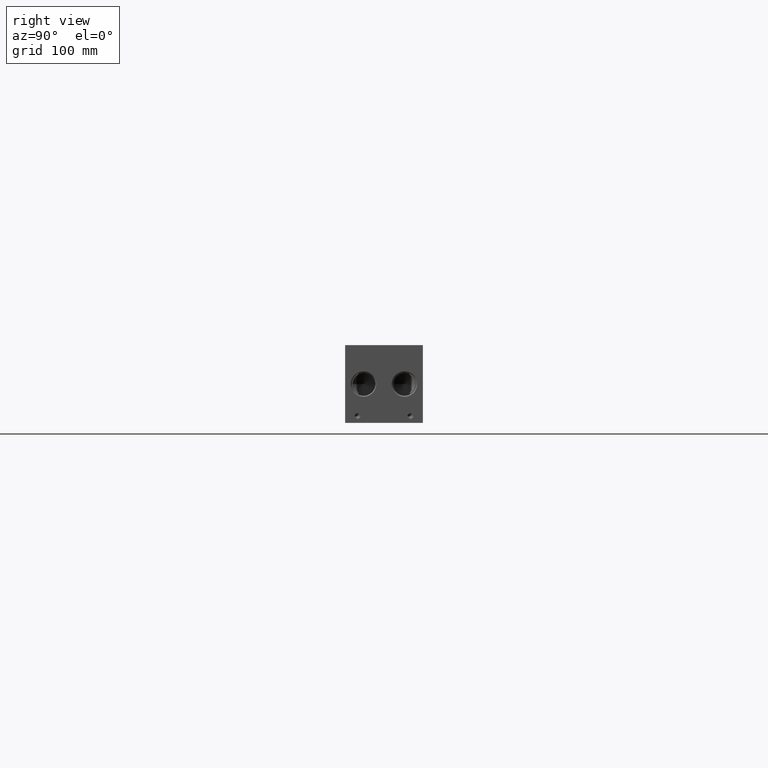
[diagram: clean part render]
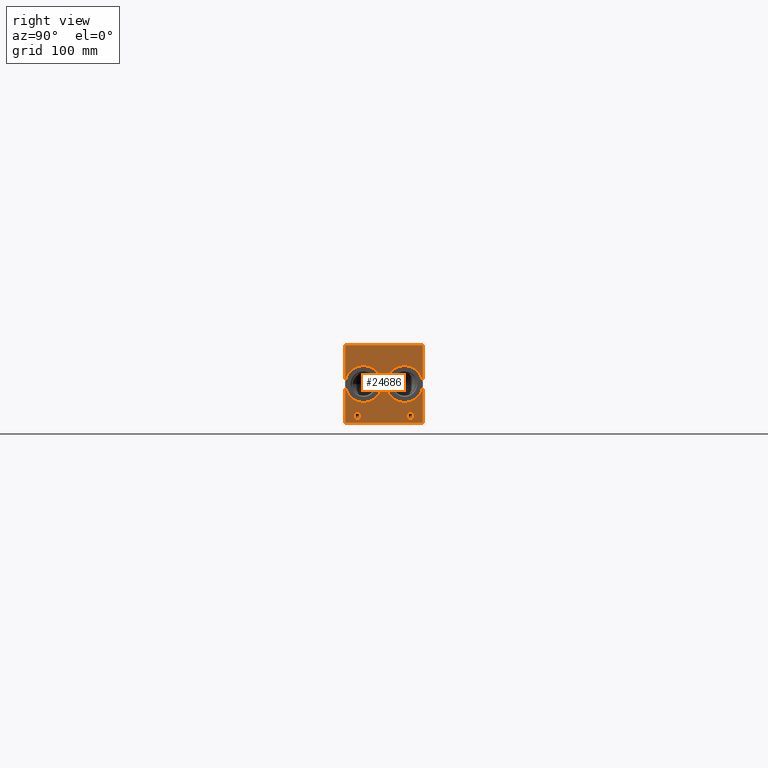
[diagram: same view with one face highlighted and labeled with its STEP entity id]
A machine part, right view. The second image highlights one B-rep face of the part: STEP entity #24686.
In plain terms, the highlighted planar face has unit normal (1, 0, 0).
Its self-contained STEP definition (entity closure, byte-faithful):
#760=CIRCLE('',#25844,21.0185);
#761=CIRCLE('',#25845,21.0185);
#762=CIRCLE('',#25846,21.0185);
#763=CIRCLE('',#25847,21.0185);
#764=CIRCLE('',#25848,3.9624);
#765=CIRCLE('',#25849,3.9624);
#766=CIRCLE('',#25850,3.9624);
#767=CIRCLE('',#25851,3.9624);
#2131=B_SPLINE_CURVE_WITH_KNOTS('',2,(#40350,#40351,#40352,#40353),
 .UNSPECIFIED.,.F.,.F.,(3,1,3),(0.,1.,2.),.UNSPECIFIED.);
#2133=B_SPLINE_CURVE_WITH_KNOTS('',2,(#40371,#40372,#40373,#40374),
 .UNSPECIFIED.,.F.,.F.,(3,1,3),(0.,1.,2.),.UNSPECIFIED.);
#2135=B_SPLINE_CURVE_WITH_KNOTS('',2,(#40420,#40421,#40422,#40423),
 .UNSPECIFIED.,.F.,.F.,(3,1,3),(0.,1.,2.),.UNSPECIFIED.);
#2137=B_SPLINE_CURVE_WITH_KNOTS('',2,(#40438,#40439,#40440,#40441),
 .UNSPECIFIED.,.F.,.F.,(3,1,3),(0.,1.,2.),.UNSPECIFIED.);
#2293=FACE_BOUND('',#4609,.T.);
#2294=FACE_BOUND('',#4610,.T.);
#2295=FACE_BOUND('',#4611,.T.);
#2296=FACE_BOUND('',#4612,.T.);
#2297=FACE_BOUND('',#4613,.T.);
#2298=FACE_BOUND('',#4614,.T.);
#3182=FACE_OUTER_BOUND('',#4608,.T.);
#4608=EDGE_LOOP('',(#19345,#19346,#19347,#19348));
#4609=EDGE_LOOP('',(#19349,#19350,#19351,#19352,#19353,#19354,#19355,#19356));
#4610=EDGE_LOOP('',(#19357,#19358));
#4611=EDGE_LOOP('',(#19359,#19360));
#4612=EDGE_LOOP('',(#19361,#19362));
#4613=EDGE_LOOP('',(#19363,#19364));
#4614=EDGE_LOOP('',(#19365,#19366,#19367,#19368,#19369,#19370,#19371,#19372,
#19373));
#5471=LINE('',#33495,#7519);
#6798=LINE('',#40151,#8846);
#6802=LINE('',#40159,#8850);
#6805=LINE('',#40165,#8853);
#6808=LINE('',#40171,#8856);
#6811=LINE('',#40177,#8859);
#6814=LINE('',#40183,#8862);
#6817=LINE('',#40189,#8865);
#6820=LINE('',#40194,#8868);
#6862=LINE('',#40383,#8910);
#6865=LINE('',#40389,#8913);
#6868=LINE('',#40395,#8916);
#6871=LINE('',#40401,#8919);
#6874=LINE('',#40407,#8922);
#6878=LINE('',#40449,#8926);
#6879=LINE('',#40451,#8927);
#6880=LINE('',#40452,#8928);
#7519=VECTOR('',#27410,10.);
#8846=VECTOR('',#29673,10.);
#8850=VECTOR('',#29679,10.);
#8853=VECTOR('',#29684,10.);
#8856=VECTOR('',#29689,10.);
#8859=VECTOR('',#29694,10.);
#8862=VECTOR('',#29699,10.);
#8865=VECTOR('',#29704,10.);
#8868=VECTOR('',#29709,10.);
#8910=VECTOR('',#29779,10.);
#8913=VECTOR('',#29784,10.);
#8916=VECTOR('',#29789,10.);
#8919=VECTOR('',#29794,10.);
#8922=VECTOR('',#29799,10.);
#8926=VECTOR('',#29807,10.);
#8927=VECTOR('',#29808,10.);
#8928=VECTOR('',#29809,10.);
#9556=VERTEX_POINT('',#33492);
#9557=VERTEX_POINT('',#33494);
#10801=VERTEX_POINT('',#40149);
#10802=VERTEX_POINT('',#40150);
#10805=VERTEX_POINT('',#40158);
#10807=VERTEX_POINT('',#40164);
#10809=VERTEX_POINT('',#40170);
#10811=VERTEX_POINT('',#40176);
#10813=VERTEX_POINT('',#40182);
#10815=VERTEX_POINT('',#40188);
#10847=VERTEX_POINT('',#40348);
#10848=VERTEX_POINT('',#40349);
#10851=VERTEX_POINT('',#40370);
#10853=VERTEX_POINT('',#40382);
#10855=VERTEX_POINT('',#40388);
#10857=VERTEX_POINT('',#40394);
#10859=VERTEX_POINT('',#40400);
#10861=VERTEX_POINT('',#40406);
#10863=VERTEX_POINT('',#40419);
#10865=VERTEX_POINT('',#40448);
#10866=VERTEX_POINT('',#40450);
#10867=VERTEX_POINT('',#40453);
#10868=VERTEX_POINT('',#40454);
#10869=VERTEX_POINT('',#40457);
#10870=VERTEX_POINT('',#40458);
#10871=VERTEX_POINT('',#40461);
#10872=VERTEX_POINT('',#40462);
#10873=VERTEX_POINT('',#40465);
#10874=VERTEX_POINT('',#40466);
#12053=EDGE_CURVE('',#9556,#9557,#5471,.T.);
#13880=EDGE_CURVE('',#10801,#10802,#6798,.T.);
#13884=EDGE_CURVE('',#10805,#10801,#6802,.T.);
#13887=EDGE_CURVE('',#10807,#10805,#6805,.T.);
#13890=EDGE_CURVE('',#10809,#10807,#6808,.T.);
#13893=EDGE_CURVE('',#10811,#10809,#6811,.T.);
#13896=EDGE_CURVE('',#10813,#10811,#6814,.T.);
#13899=EDGE_CURVE('',#10815,#10813,#6817,.T.);
#13902=EDGE_CURVE('',#10802,#10815,#6820,.T.);
#13949=EDGE_CURVE('',#10847,#10848,#2131,.T.);
#13953=EDGE_CURVE('',#10851,#10847,#2133,.T.);
#13956=EDGE_CURVE('',#10853,#10851,#6862,.T.);
#13959=EDGE_CURVE('',#10855,#10853,#6865,.T.);
#13962=EDGE_CURVE('',#10857,#10855,#6868,.T.);
#13965=EDGE_CURVE('',#10859,#10857,#6871,.T.);
#13968=EDGE_CURVE('',#10861,#10859,#6874,.T.);
#13971=EDGE_CURVE('',#10863,#10861,#2135,.T.);
#13974=EDGE_CURVE('',#10848,#10863,#2137,.T.);
#13976=EDGE_CURVE('',#9556,#10865,#6878,.T.);
#13977=EDGE_CURVE('',#10865,#10866,#6879,.T.);
#13978=EDGE_CURVE('',#9557,#10866,#6880,.T.);
#13979=EDGE_CURVE('',#10867,#10868,#760,.T.);
#13980=EDGE_CURVE('',#10868,#10867,#761,.T.);
#13981=EDGE_CURVE('',#10869,#10870,#762,.T.);
#13982=EDGE_CURVE('',#10870,#10869,#763,.T.);
#13983=EDGE_CURVE('',#10871,#10872,#764,.T.);
#13984=EDGE_CURVE('',#10872,#10871,#765,.T.);
#13985=EDGE_CURVE('',#10873,#10874,#766,.T.);
#13986=EDGE_CURVE('',#10874,#10873,#767,.T.);
#19345=ORIENTED_EDGE('',*,*,#13976,.T.);
#19346=ORIENTED_EDGE('',*,*,#13977,.T.);
#19347=ORIENTED_EDGE('',*,*,#13978,.F.);
#19348=ORIENTED_EDGE('',*,*,#12053,.F.);
#19349=ORIENTED_EDGE('',*,*,#13880,.T.);
#19350=ORIENTED_EDGE('',*,*,#13902,.T.);
#19351=ORIENTED_EDGE('',*,*,#13899,.T.);
#19352=ORIENTED_EDGE('',*,*,#13896,.T.);
#19353=ORIENTED_EDGE('',*,*,#13893,.T.);
#19354=ORIENTED_EDGE('',*,*,#13890,.T.);
#19355=ORIENTED_EDGE('',*,*,#13887,.T.);
#19356=ORIENTED_EDGE('',*,*,#13884,.T.);
#19357=ORIENTED_EDGE('',*,*,#13979,.T.);
#19358=ORIENTED_EDGE('',*,*,#13980,.T.);
#19359=ORIENTED_EDGE('',*,*,#13981,.T.);
#19360=ORIENTED_EDGE('',*,*,#13982,.T.);
#19361=ORIENTED_EDGE('',*,*,#13983,.T.);
#19362=ORIENTED_EDGE('',*,*,#13984,.T.);
#19363=ORIENTED_EDGE('',*,*,#13985,.T.);
#19364=ORIENTED_EDGE('',*,*,#13986,.T.);
#19365=ORIENTED_EDGE('',*,*,#13949,.T.);
#19366=ORIENTED_EDGE('',*,*,#13974,.T.);
#19367=ORIENTED_EDGE('',*,*,#13971,.T.);
#19368=ORIENTED_EDGE('',*,*,#13968,.T.);
#19369=ORIENTED_EDGE('',*,*,#13965,.T.);
#19370=ORIENTED_EDGE('',*,*,#13962,.T.);
#19371=ORIENTED_EDGE('',*,*,#13959,.T.);
#19372=ORIENTED_EDGE('',*,*,#13956,.T.);
#19373=ORIENTED_EDGE('',*,*,#13953,.T.);
#23071=PLANE('',#25843);
#24686=ADVANCED_FACE('',(#3182,#2293,#2294,#2295,#2296,#2297,#2298),#23071,
 .T.);
#25843=AXIS2_PLACEMENT_3D('',#40447,#29805,#29806);
#25844=AXIS2_PLACEMENT_3D('',#40455,#29810,#29811);
#25845=AXIS2_PLACEMENT_3D('',#40456,#29812,#29813);
#25846=AXIS2_PLACEMENT_3D('',#40459,#29814,#29815);
#25847=AXIS2_PLACEMENT_3D('',#40460,#29816,#29817);
#25848=AXIS2_PLACEMENT_3D('',#40463,#29818,#29819);
#25849=AXIS2_PLACEMENT_3D('',#40464,#29820,#29821);
#25850=AXIS2_PLACEMENT_3D('',#40467,#29822,#29823);
#25851=AXIS2_PLACEMENT_3D('',#40468,#29824,#29825);
#27410=DIRECTION('',(0.,0.,1.));
#29673=DIRECTION('',(0.,-1.,0.));
#29679=DIRECTION('',(0.,0.,-1.));
#29684=DIRECTION('',(0.,-1.,0.));
#29689=DIRECTION('',(0.,0.,-1.));
#29694=DIRECTION('',(0.,1.,0.));
#29699=DIRECTION('',(0.,0.,1.));
#29704=DIRECTION('',(0.,-1.,0.));
#29709=DIRECTION('',(0.,0.,1.));
#29779=DIRECTION('',(0.,1.,0.));
#29784=DIRECTION('',(0.,0.,1.));
#29789=DIRECTION('',(0.,-1.,0.));
#29794=DIRECTION('',(0.,0.,-1.));
#29799=DIRECTION('',(0.,-1.,0.));
#29805=DIRECTION('center_axis',(1.,0.,0.));
#29806=DIRECTION('ref_axis',(0.,1.,0.));
#29807=DIRECTION('',(0.,1.,0.));
#29808=DIRECTION('',(0.,0.,1.));
#29809=DIRECTION('',(0.,1.,0.));
#29810=DIRECTION('center_axis',(-1.,0.,0.));
#29811=DIRECTION('ref_axis',(0.,0.,-1.));
#29812=DIRECTION('center_axis',(-1.,0.,0.));
#29813=DIRECTION('ref_axis',(0.,0.,-1.));
#29814=DIRECTION('center_axis',(-1.,0.,0.));
#29815=DIRECTION('ref_axis',(0.,0.,-1.));
#29816=DIRECTION('center_axis',(-1.,0.,0.));
#29817=DIRECTION('ref_axis',(0.,0.,-1.));
#29818=DIRECTION('center_axis',(-1.,0.,0.));
#29819=DIRECTION('ref_axis',(0.,1.,0.));
#29820=DIRECTION('center_axis',(-1.,0.,0.));
#29821=DIRECTION('ref_axis',(0.,1.,0.));
#29822=DIRECTION('center_axis',(-1.,0.,0.));
#29823=DIRECTION('ref_axis',(0.,1.,0.));
#29824=DIRECTION('center_axis',(-1.,0.,0.));
#29825=DIRECTION('ref_axis',(0.,1.,0.));
#33492=CARTESIAN_POINT('',(825.5,0.,0.));
#33494=CARTESIAN_POINT('',(825.5,0.,88.9));
#33495=CARTESIAN_POINT('',(825.5,0.,0.));
#40149=CARTESIAN_POINT('',(825.5,78.375415271453,69.05625));
#40150=CARTESIAN_POINT('',(825.5,77.5314930799135,69.05625));
#40151=CARTESIAN_POINT('',(825.5,39.1877076357265,69.05625));
#40158=CARTESIAN_POINT('',(825.5,78.375415271453,74.6549533194816));
#40159=CARTESIAN_POINT('',(825.5,78.375415271453,37.3274766597408));
#40164=CARTESIAN_POINT('',(825.5,80.5058042183881,74.6549533194816));
#40165=CARTESIAN_POINT('',(825.5,40.252902109194,74.6549533194816));
#40170=CARTESIAN_POINT('',(825.5,80.5058042183881,75.4062499046326));
#40171=CARTESIAN_POINT('',(825.5,80.5058042183881,37.7031249523163));
#40176=CARTESIAN_POINT('',(825.5,75.4011041329784,75.4062499046326));
#40177=CARTESIAN_POINT('',(825.5,37.7005520664892,75.4062499046326));
#40182=CARTESIAN_POINT('',(825.5,75.4011041329784,74.6549533194816));
#40183=CARTESIAN_POINT('',(825.5,75.4011041329784,37.3274766597408));
#40188=CARTESIAN_POINT('',(825.5,77.5314930799135,74.6549533194816));
#40189=CARTESIAN_POINT('',(825.5,38.7657465399567,74.6549533194816));
#40194=CARTESIAN_POINT('',(825.5,77.5314930799135,34.528125));
#40348=CARTESIAN_POINT('',(825.5,8.66306720235939,75.0100181439707));
#40349=CARTESIAN_POINT('',(825.5,9.41950965453199,73.491987372604));
#40350=CARTESIAN_POINT('Ctrl Pts',(825.5,8.66306720235939,75.0100181439707));
#40351=CARTESIAN_POINT('Ctrl Pts',(825.5,9.01813202684857,74.7681623939564));
#40352=CARTESIAN_POINT('Ctrl Pts',(825.5,9.41950965453199,74.0220116758269));
#40353=CARTESIAN_POINT('Ctrl Pts',(825.5,9.41950965453199,73.491987372604));
#40370=CARTESIAN_POINT('',(825.5,7.0009521543883,75.4062499046326));
#40371=CARTESIAN_POINT('Ctrl Pts',(825.5,7.0009521543883,75.4062499046326));
#40372=CARTESIAN_POINT('Ctrl Pts',(825.5,7.56699752676236,75.4062499046326));
#40373=CARTESIAN_POINT('Ctrl Pts',(825.5,8.35946104808603,75.2209986918556));
#40374=CARTESIAN_POINT('Ctrl Pts',(825.5,8.66306720235939,75.0100181439707));
#40382=CARTESIAN_POINT('',(825.5,5.40573337769779,75.4062499046326));
#40383=CARTESIAN_POINT('',(825.5,2.70286668884889,75.4062499046326));
#40388=CARTESIAN_POINT('',(825.5,5.40573337769779,69.05625));
#40389=CARTESIAN_POINT('',(825.5,5.40573337769779,34.528125));
#40394=CARTESIAN_POINT('',(825.5,6.24965556923729,69.05625));
#40395=CARTESIAN_POINT('',(825.5,3.12482778461864,69.05625));
#40400=CARTESIAN_POINT('',(825.5,6.24965556923729,71.4233488299279));
#40401=CARTESIAN_POINT('',(825.5,6.24965556923729,35.7116744149639));
#40406=CARTESIAN_POINT('',(825.5,6.96493108523723,71.4233488299279));
#40407=CARTESIAN_POINT('',(825.5,3.48246554261861,71.4233488299279));
#40419=CARTESIAN_POINT('',(825.5,8.8637560162011,72.0820198086904));
#40420=CARTESIAN_POINT('Ctrl Pts',(825.5,8.8637560162011,72.0820198086904));
#40421=CARTESIAN_POINT('Ctrl Pts',(825.5,8.53442052681983,71.7578301863307));
#40422=CARTESIAN_POINT('Ctrl Pts',(825.5,7.64418553208609,71.4233488299279));
#40423=CARTESIAN_POINT('Ctrl Pts',(825.5,6.96493108523723,71.4233488299279));
#40438=CARTESIAN_POINT('Ctrl Pts',(825.5,9.41950965453199,73.491987372604));
#40439=CARTESIAN_POINT('Ctrl Pts',(825.5,9.41950965453199,73.0803180108774));
#40440=CARTESIAN_POINT('Ctrl Pts',(825.5,9.1261952343018,72.3393131597695));
#40441=CARTESIAN_POINT('Ctrl Pts',(825.5,8.8637560162011,72.0820198086904));
#40447=CARTESIAN_POINT('Origin',(825.5,0.,0.));
#40448=CARTESIAN_POINT('',(825.5,88.9,0.));
#40449=CARTESIAN_POINT('',(825.5,0.,0.));
#40450=CARTESIAN_POINT('',(825.5,88.9,88.9));
#40451=CARTESIAN_POINT('',(825.5,88.9,0.));
#40452=CARTESIAN_POINT('',(825.5,0.,88.9));
#40453=CARTESIAN_POINT('',(825.5,21.082,23.4315));
#40454=CARTESIAN_POINT('',(825.5,21.082,65.4685));
#40455=CARTESIAN_POINT('Origin',(825.5,21.082,44.45));
#40456=CARTESIAN_POINT('Origin',(825.5,21.082,44.45));
#40457=CARTESIAN_POINT('',(825.5,67.818,23.4315));
#40458=CARTESIAN_POINT('',(825.5,67.818,65.4685));
#40459=CARTESIAN_POINT('Origin',(825.5,67.818,44.45));
#40460=CARTESIAN_POINT('Origin',(825.5,67.818,44.45));
#40461=CARTESIAN_POINT('',(825.5,78.5876,7.9248));
#40462=CARTESIAN_POINT('',(825.5,70.6628,7.9248));
#40463=CARTESIAN_POINT('Origin',(825.5,74.6252,7.9248));
#40464=CARTESIAN_POINT('Origin',(825.5,74.6252,7.9248));
#40465=CARTESIAN_POINT('',(825.5,18.2372,7.9248));
#40466=CARTESIAN_POINT('',(825.5,10.3124,7.9248));
#40467=CARTESIAN_POINT('Origin',(825.5,14.2748,7.9248));
#40468=CARTESIAN_POINT('Origin',(825.5,14.2748,7.9248));